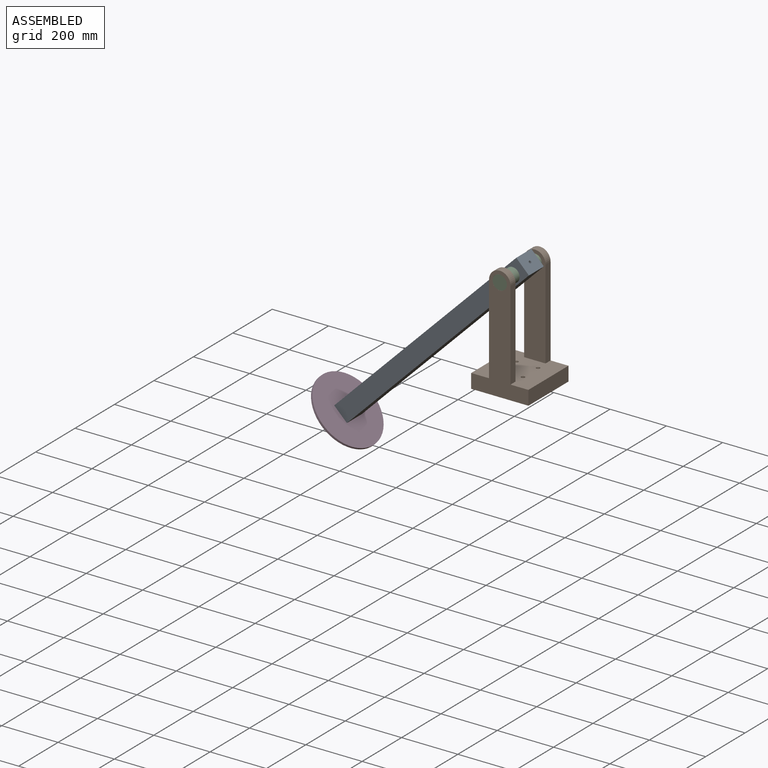
[diagram: assembled view]
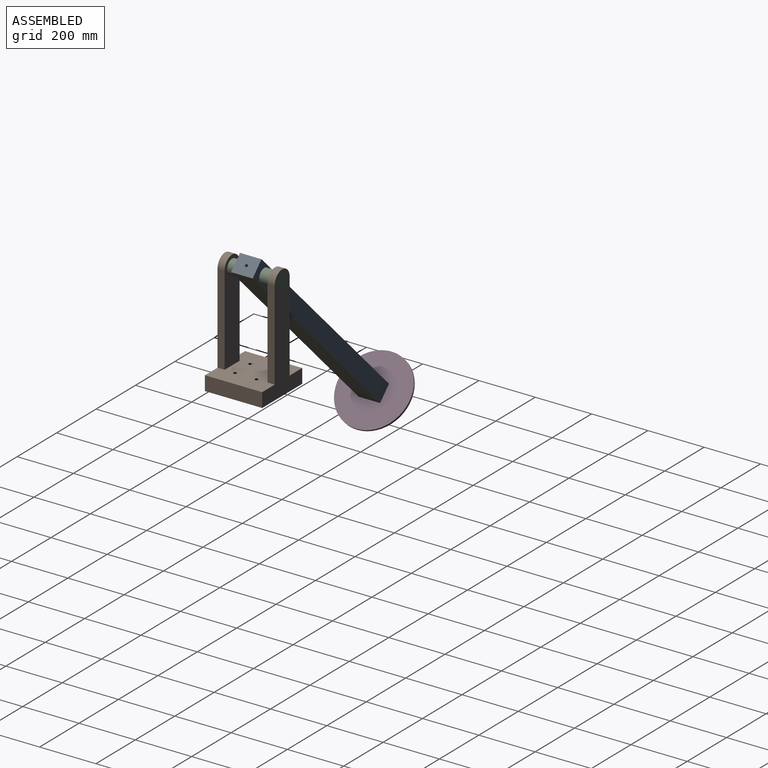
[diagram: assembled view, second angle]
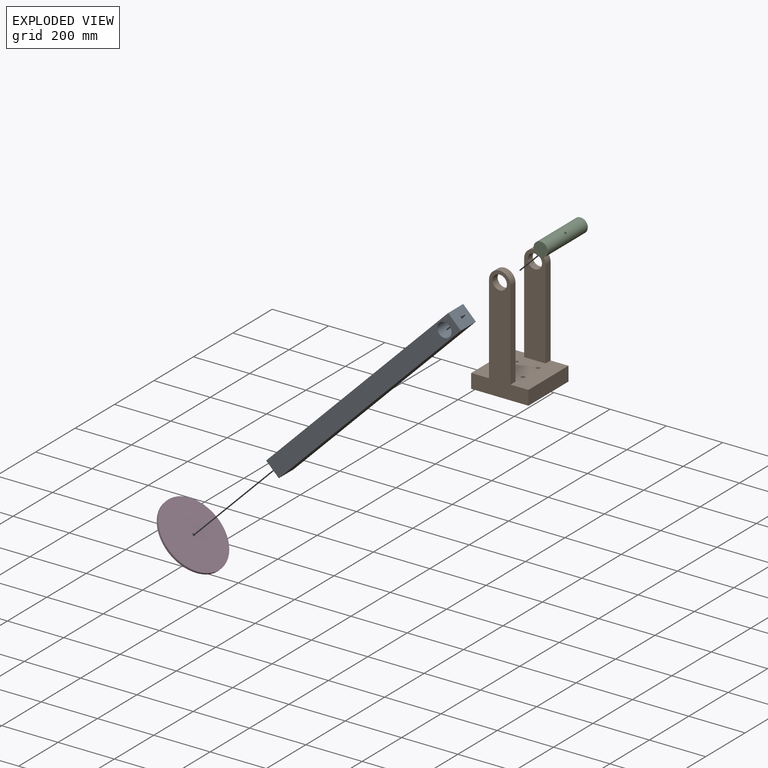
[diagram: exploded view]
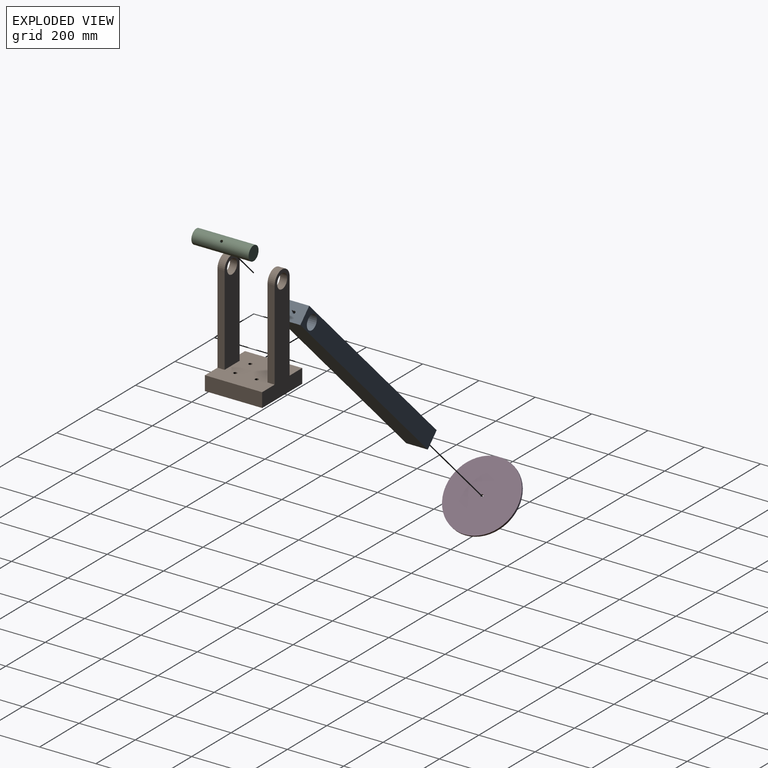
[diagram: exploded view, second angle]
ASSEMBLY  parts=4 mates=3
PART A: 10 faces, bbox 76.2x914.4x63.5 mm
  f0: plane 914.4x76.2mm, normal (0,0,1), area 69677.3mm2, adj f1,f4,f5,f6
  f1: plane 76.2x63.5mm, normal (0,-1,0), area 4767.4mm2, adj f0,f2,f5,f6,f8
  f2: plane 914.4x76.2mm, normal (0,0,-1), area 69677.3mm2, adj f1,f4,f5,f6
  f3: cylinder r=25.46mm len=76.2mm, axis (-1,0,0), area 12119.5mm2, adj f5,f6,f7
  f4: plane 76.2x63.5mm, normal (0,1,0), area 4767.4mm2, adj f0,f2,f5,f6,f7
  f5: plane 914.4x63.5mm, normal (1,0,0), area 56027.4mm2, adj f0,f1,f2,f3,f4
  f6: plane 914.4x63.5mm, normal (-1,0,0), area 56027.4mm2, adj f0,f1,f2,f3,f4
  f7: cylinder r=4.76mm len=25.79mm, axis (0,1,0), area 764.9mm2, adj f3,f4
  f8: cylinder r=4.76mm len=25.4mm, axis (0,-1,0), area 760.1mm2, adj f1,f9
  f9: plane 9.53x9.53mm, normal (0,-1,0), area 71.3mm2, adj f8
PART B: 20 faces, bbox 203.2x203.2x406.4 mm
  f0: plane 406.4x203.2mm, normal (0,1,0), area 34769.4mm2, adj f1,f7,f8,f9,f10,f11,f12,f13
  f1: plane 203.2x50.8mm, normal (-1,0,0), area 10322.6mm2, adj f0,f2,f8,f9
  f2: plane 406.4x203.2mm, normal (0,-1,0), area 34769.4mm2, adj f1,f7,f8,f9,f15,f16,f17,f18
  f3: cylinder r=6.35mm len=50.8mm, axis (0,0,-1), area 2026.8mm2, adj f8,f9
  f4: cylinder r=6.35mm len=50.8mm, axis (0,0,-1), area 2026.8mm2, adj f8,f9
  f5: cylinder r=6.35mm len=50.8mm, axis (0,0,-1), area 2026.8mm2, adj f8,f9
  f6: cylinder r=6.35mm len=50.8mm, axis (0,0,-1), area 2026.8mm2, adj f8,f9
  f7: plane 203.2x50.8mm, normal (1,0,0), area 10322.6mm2, adj f0,f2,f8,f9
  f8: plane 203.2x203.2mm, normal (0,0,1), area 36912.6mm2, adj f0,f1,f2,f3,f4,f5,f6,f7
  f9: plane 203.2x203.2mm, normal (0,0,-1), area 40783.5mm2, adj f0,f1,f2,f3,f4,f5,f6,f7
  f10: plane 317.5x25.4mm, normal (1,0,0), area 8064.5mm2, adj f0,f8,f12,f14
  f11: plane 317.5x25.4mm, normal (-1,0,0), area 8064.5mm2, adj f0,f8,f12,f14
  f12: cylinder r=38.1mm len=76.2mm, axis (0,1,0), area 3040.2mm2, adj f0,f10,f11,f14
  f13: cylinder r=25.4mm len=50.8mm, axis (0,1,0), area 4053.7mm2, adj f0,f14
  f14: plane 355.6x76.2mm, normal (0,-1,0), area 24446.9mm2, adj f8,f10,f11,f12,f13
  f15: plane 317.5x25.4mm, normal (1,0,0), area 8064.5mm2, adj f2,f8,f17,f19
  f16: plane 317.5x25.4mm, normal (-1,0,0), area 8064.5mm2, adj f2,f8,f17,f19
  f17: cylinder r=38.1mm len=76.2mm, axis (0,-1,0), area 3040.2mm2, adj f2,f15,f16,f19
  f18: cylinder r=25.4mm len=50.8mm, axis (0,-1,0), area 4053.7mm2, adj f2,f19
  f19: plane 355.6x76.2mm, normal (0,1,0), area 24446.9mm2, adj f8,f15,f16,f17,f18
PART C: 4 faces, bbox 50.7x203.2x50.7 mm
  f0: cylinder r=25.34mm len=203.2mm, axis (0,1,0), area 32205.1mm2, adj f1,f2,f3
  f1: plane 50.67x50.67mm, normal (0,-1,0), area 2016.7mm2, adj f0
  f2: plane 50.67x50.67mm, normal (0,1,0), area 2016.7mm2, adj f0
  f3: cylinder r=4.76mm len=50.67mm, axis (0,0,1), area 1502.8mm2, adj f0
PART D: 4 faces, bbox 254x7.6x254 mm
  f0: cylinder r=4.76mm len=9.53mm, axis (0,1,0), area 228mm2, adj f2,f3
  f1: cylinder r=127mm len=254mm, axis (0,1,0), area 6080.5mm2, adj f2,f3
  f2: plane 254x254mm, normal (0,-1,0), area 50599.5mm2, adj f0,f1
  f3: plane 254x254mm, normal (0,1,0), area 50599.5mm2, adj f0,f1
PLACE A rot(axis=(0.36,-0.36,-0.86),98.4deg) t=(-286.81,0,30.69)mm
PLACE B t=(0,0,-50.8)mm
PLACE C rot(axis=(0,-1,0),135deg) t=(0,0,317.5)mm
PLACE D rot(axis=(-0.36,-0.36,0.86),98.4deg) t=(-612.79,0,-295.29)mm
MATE fastened D.f1 <-> A.f7  axis (0.71,0,0.71) through (-610.1,0,-292.6)mm
MATE fastened C.f3 <-> A.f7  axis (-0.71,0,-0.71) through (18.13,0,335.63)mm
MATE revolute C.f0 <-> B.f13  axis (0,1,0) through (0,101.6,317.5)mm
